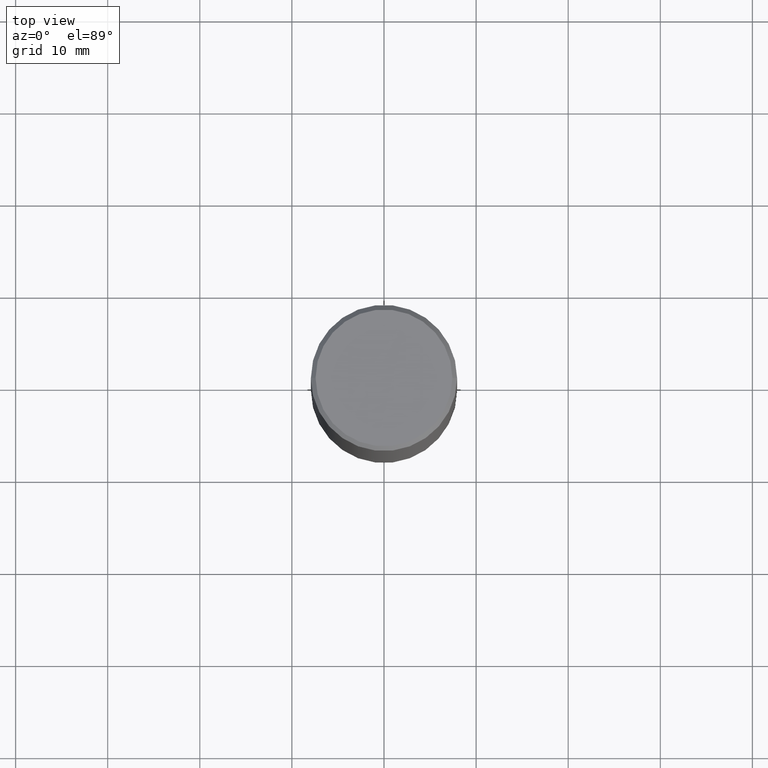
[diagram: clean part render]
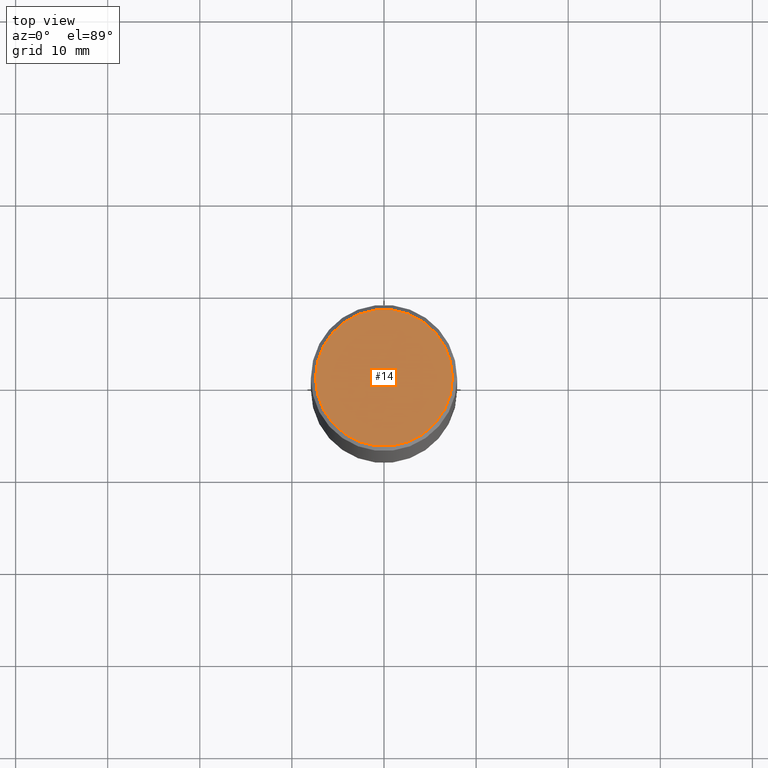
[diagram: same view with one face highlighted and labeled with its STEP entity id]
A machine part, top view. The second image highlights one B-rep face of the part: STEP entity #14.
In plain terms, the highlighted planar face has unit normal (0, -0, -1).
Its self-contained STEP definition (entity closure, byte-faithful):
#14 = ADVANCED_FACE ( 'NONE', ( #397 ), #265, .F. ) ;
#21 = VERTEX_POINT ( 'NONE', #92 ) ;
#28 = DIRECTION ( 'NONE',  ( 2.438088387897960049E-29, -3.491481338843145188E-15, -1.000000000000000000 ) ) ;
#33 = CIRCLE ( 'NONE', #440, 0.2924999999999997602 ) ;
#58 = CARTESIAN_POINT ( 'NONE',  ( 2.042516583223231356E-15, 0.2924999999999997602, -1.016989779121518999E-15 ) ) ;
#63 = DIRECTION ( 'NONE',  ( -1.000000000000000000, 6.982962677686265922E-15, -4.876176775795935793E-29 ) ) ;
#65 = EDGE_LOOP ( 'NONE', ( #224, #123 ) ) ;
#92 = CARTESIAN_POINT ( 'NONE',  ( 0.2924999999999997602, -2.110215457714318353E-15, 8.537024980215342529E-18 ) ) ;
#104 = CIRCLE ( 'NONE', #150, 0.2924999999999997602 ) ;
#123 = ORIENTED_EDGE ( 'NONE', *, *, #315, .T. ) ;
#150 = AXIS2_PLACEMENT_3D ( 'NONE', #366, #168, #375 ) ;
#168 = DIRECTION ( 'NONE',  ( -2.445468806185136597E-29, 3.491481338843145583E-15, 1.000000000000000000 ) ) ;
#224 = ORIENTED_EDGE ( 'NONE', *, *, #253, .T. ) ;
#253 = EDGE_CURVE ( 'NONE', #391, #21, #33, .T. ) ;
#265 = PLANE ( 'NONE',  #310 ) ;
#272 = DIRECTION ( 'NONE',  ( 1.000000000000000000, -6.982962677686266711E-15, 4.876067333457693400E-29 ) ) ;
#306 = CARTESIAN_POINT ( 'NONE',  ( -2.087702828670439639E-46, 2.980686340760894400E-32, 8.537024980200822558E-18 ) ) ;
#310 = AXIS2_PLACEMENT_3D ( 'NONE', #58, #28, #63 ) ;
#315 = EDGE_CURVE ( 'NONE', #21, #391, #104, .T. ) ;
#337 = CARTESIAN_POINT ( 'NONE',  ( -0.2924999999999997602, 2.077431396611662611E-15, 8.537024980186416602E-18 ) ) ;
#350 = DIRECTION ( 'NONE',  ( -2.445468806185136597E-29, 3.491481338843145583E-15, 1.000000000000000000 ) ) ;
#366 = CARTESIAN_POINT ( 'NONE',  ( -2.087702828670439639E-46, 2.980686340760894400E-32, 8.537024980200822558E-18 ) ) ;
#375 = DIRECTION ( 'NONE',  ( 1.000000000000000000, -6.982962677686266711E-15, 4.876067333457693400E-29 ) ) ;
#391 = VERTEX_POINT ( 'NONE', #337 ) ;
#397 = FACE_OUTER_BOUND ( 'NONE', #65, .T. ) ;
#440 = AXIS2_PLACEMENT_3D ( 'NONE', #306, #350, #272 ) ;